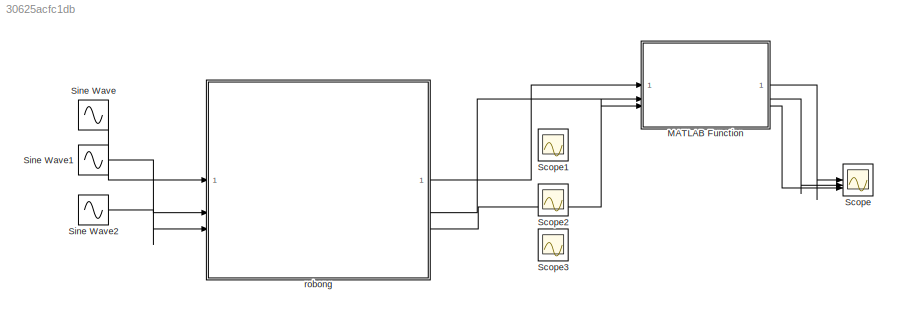
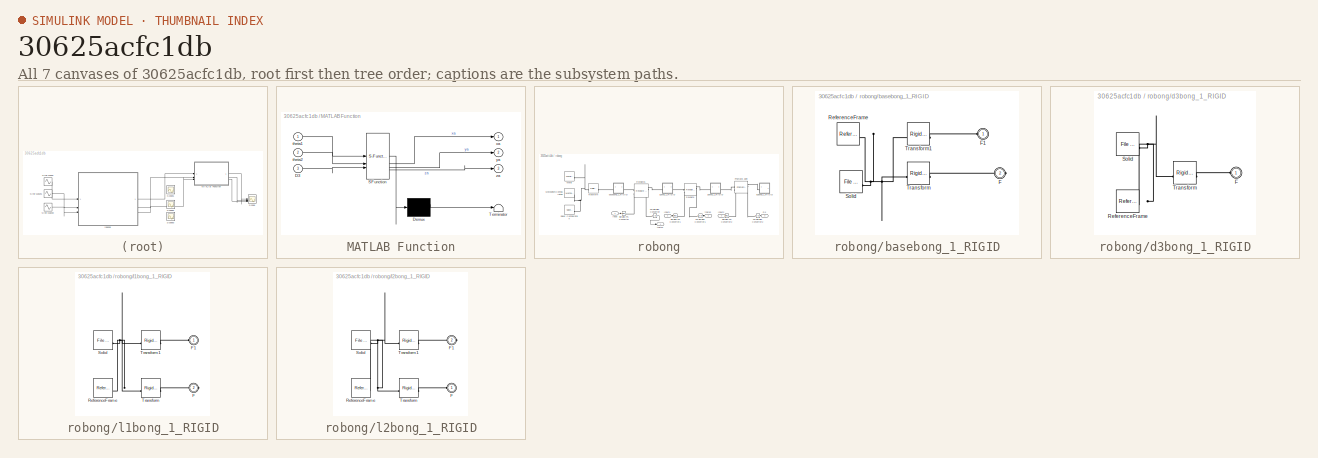
[diagram: thumbnail index - all 7 canvases of the model, root first then tree order]
MODEL slx_30625acfc1db
KIND model
CONFIG AbsTol = auto
CONFIG EnableMultiTasking = off
CONFIG FixedStep = auto
CONFIG MaxStep = auto
CONFIG MinStep = auto
CONFIG RelTol = 1e-3
CONFIG SampleTimeConstraint = Unconstrained
CONFIG SolverName = VariableStepAuto
CONFIG StartTime = 0.0
CONFIG StopTime = 10.0
WORKSPACE source: external: MATLAB File  (data not in archive)
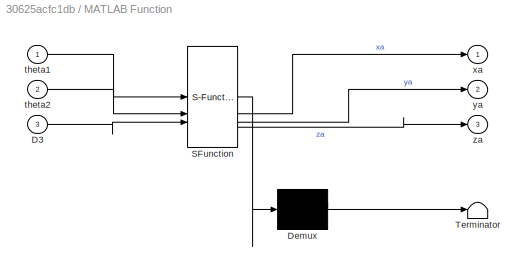
BLOCK [SubSystem] MATLAB Function
  ErrorFcn = Stateflow.Translate.translate
  PermitHierarchicalResolution = ExplicitOnly
  SFBlockType = MATLAB Function
  TreatAsAtomicUnit = on
BLOCK [Demux] MATLAB Function/ Demux 
  Outputs = 1
BLOCK [S-Function] MATLAB Function/ SFunction 
  EnableBusSupport = on
  FunctionName = sf_sfun
  PortCounts = [3 4]
  SFcnIsStateOwnerBlock = off
  SFunctionDeploymentMode = off
  Tag = Stateflow S-Function 2
BLOCK [Terminator] MATLAB Function/ Terminator 
BLOCK [Inport] MATLAB Function/D3
  Port = 3
BLOCK [Inport] MATLAB Function/theta1
BLOCK [Inport] MATLAB Function/theta2
  Port = 2
BLOCK [Outport] MATLAB Function/xa
BLOCK [Outport] MATLAB Function/ya
  Port = 2
BLOCK [Outport] MATLAB Function/za
  Port = 3
BLOCK [Scope] Scope
  Floating = off
  NumInputPorts = 3
  ScopeSpecificationString = Simulink.scopes.TimeScopeBlockCfg('CurrentConfiguration', extmgr.ConfigurationSet(extmgr.Configuration('Core','General UI',true),extmgr.Configuration('Core','Source UI',true),extmgr.Configuration('Sources','WiredSimulink',true,'DataLoggingVariableName','ScopeData1'),extmgr.Configuration('Visuals','Time Domain',true,'SerializedDisplays',{struct('MinYLimReal','0.54726','MaxYLimReal','0.6956','YLabel...<+3726ch>
BLOCK [Scope] Scope1
  Floating = off
  NumInputPorts = 3
  ScopeSpecificationString = Simulink.scopes.TimeScopeBlockCfg('CurrentConfiguration', extmgr.ConfigurationSet(extmgr.Configuration('Core','General UI',true),extmgr.Configuration('Core','Source UI',true),extmgr.Configuration('Sources','WiredSimulink',true,'DataLoggingVariableName','ScopeData1'),extmgr.Configuration('Visuals','Time Domain',true,'SerializedDisplays',{struct('MinYLimReal','-1.00000','MaxYLimReal','1.00000','YLab...<+3790ch>
BLOCK [Scope] Scope2
  Floating = off
  NumInputPorts = 3
  ScopeSpecificationString = Simulink.scopes.TimeScopeBlockCfg('CurrentConfiguration', extmgr.ConfigurationSet(extmgr.Configuration('Core','General UI',true),extmgr.Configuration('Core','Source UI',true),extmgr.Configuration('Sources','WiredSimulink',true,'DataLoggingVariableName','ScopeData2'),extmgr.Configuration('Visuals','Time Domain',true,'SerializedDisplays',{struct('MinYLimReal','-1.00000','MaxYLimReal','1.00000','YLab...<+3791ch>
BLOCK [Scope] Scope3
  Floating = off
  NumInputPorts = 3
  ScopeSpecificationString = Simulink.scopes.TimeScopeBlockCfg('CurrentConfiguration', extmgr.ConfigurationSet(extmgr.Configuration('Core','General UI',true),extmgr.Configuration('Core','Source UI',true),extmgr.Configuration('Sources','WiredSimulink',true,'DataLoggingVariableName','ScopeData3'),extmgr.Configuration('Visuals','Time Domain',true,'SerializedDisplays',{struct('MinYLimReal','-1.00000','MaxYLimReal','1.00000','YLab...<+3791ch>
BLOCK [Sin] Sine Wave
  Amplitude = -0.25
  Bias = 0.25
  SampleTime = 0
BLOCK [Sin] Sine Wave1
  SampleTime = 0
BLOCK [Sin] Sine Wave2
  SampleTime = 0
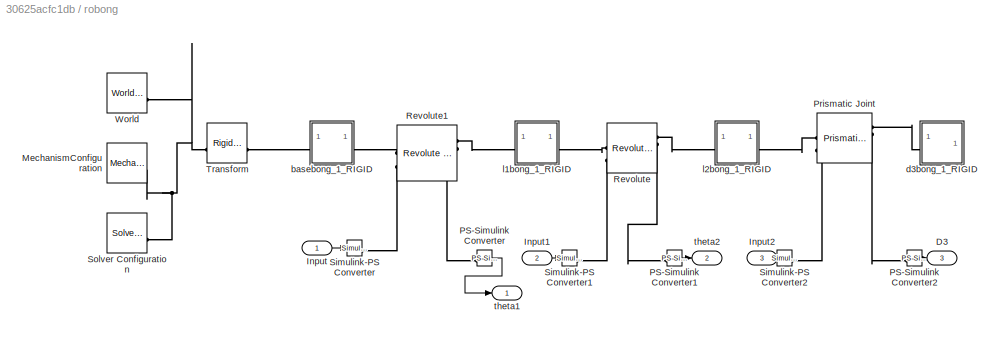
BLOCK [SubSystem] robong
BLOCK [Outport] robong/D3
  Port = 3
BLOCK [Inport] robong/Input
BLOCK [Inport] robong/Input1
  Port = 2
BLOCK [Inport] robong/Input2
  Port = 3
BLOCK [Reference] robong/MechanismConfiguration  REF=sm_lib/Utilities/Mechanism
Configuration
  SourceBlock = sm_lib/Utilities/Mechanism\nConfiguration
  SourceType = Mechanism\nConfiguration
BLOCK [Reference] robong/PS-Simulink Converter  REF=nesl_utility/PS-Simulink
Converter
  SourceBlock = nesl_utility/PS-Simulink\nConverter
  SourceType = PS-Simulink\nConverter
BLOCK [Reference] robong/PS-Simulink Converter1  REF=nesl_utility/PS-Simulink
Converter
  SourceBlock = nesl_utility/PS-Simulink\nConverter
  SourceType = PS-Simulink\nConverter
BLOCK [Reference] robong/PS-Simulink Converter2  REF=nesl_utility/PS-Simulink
Converter
  SourceBlock = nesl_utility/PS-Simulink\nConverter
  SourceType = PS-Simulink\nConverter
BLOCK [Reference] robong/Prismatic Joint  REF=sm_lib/Joints/Prismatic
Joint
  SourceBlock = sm_lib/Joints/Prismatic\nJoint
  SourceType = Prismatic\nJoint
BLOCK [Reference] robong/Revolute  REF=sm_lib/Joints/Revolute Joint
  SourceBlock = sm_lib/Joints/Revolute Joint
  SourceType = Revolute Joint
BLOCK [Reference] robong/Revolute1  REF=sm_lib/Joints/Revolute Joint
  SourceBlock = sm_lib/Joints/Revolute Joint
  SourceType = Revolute Joint
BLOCK [Reference] robong/Simulink-PS Converter  REF=nesl_utility/Simulink-PS
Converter
  SourceBlock = nesl_utility/Simulink-PS\nConverter
  SourceType = Simulink-PS\nConverter
BLOCK [Reference] robong/Simulink-PS Converter1  REF=nesl_utility/Simulink-PS
Converter
  SourceBlock = nesl_utility/Simulink-PS\nConverter
  SourceType = Simulink-PS\nConverter
BLOCK [Reference] robong/Simulink-PS Converter2  REF=nesl_utility/Simulink-PS
Converter
  SourceBlock = nesl_utility/Simulink-PS\nConverter
  SourceType = Simulink-PS\nConverter
BLOCK [Reference] robong/Solver Configuration  REF=nesl_utility/Solver
Configuration
  SourceBlock = nesl_utility/Solver\nConfiguration
  SourceType = Solver\nConfiguration
BLOCK [Reference] robong/Transform  REF=sm_lib/Frames and
Transforms/Rigid
Transform
  SourceBlock = sm_lib/Frames and\nTransforms/Rigid\nTransform
  SourceType = Rigid\nTransform
BLOCK [Reference] robong/World  REF=sm_lib/Frames and
Transforms/World Frame
  SourceBlock = sm_lib/Frames and\nTransforms/World Frame
  SourceType = World Frame
BLOCK [SubSystem] robong/basebong_1_RIGID
BLOCK [PMIOPort] robong/basebong_1_RIGID/F
  Port = 2
  Side = Right
BLOCK [PMIOPort] robong/basebong_1_RIGID/F1
  Side = Left
BLOCK [Reference] robong/basebong_1_RIGID/ReferenceFrame  REF=sm_lib/Frames and
Transforms/Reference
Frame
  SourceBlock = sm_lib/Frames and\nTransforms/Reference\nFrame
  SourceType = Reference\nFrame
BLOCK [Reference] robong/basebong_1_RIGID/Solid  REF=sm_lib/Body Elements/File Solid
  SourceBlock = sm_lib/Body Elements/File Solid
  SourceType = File Solid
BLOCK [Reference] robong/basebong_1_RIGID/Transform  REF=sm_lib/Frames and
Transforms/Rigid
Transform
  SourceBlock = sm_lib/Frames and\nTransforms/Rigid\nTransform
  SourceType = Rigid\nTransform
BLOCK [Reference] robong/basebong_1_RIGID/Transform1  REF=sm_lib/Frames and
Transforms/Rigid
Transform
  SourceBlock = sm_lib/Frames and\nTransforms/Rigid\nTransform
  SourceType = Rigid\nTransform
BLOCK [SubSystem] robong/d3bong_1_RIGID
BLOCK [PMIOPort] robong/d3bong_1_RIGID/F
  Side = Left
BLOCK [Reference] robong/d3bong_1_RIGID/ReferenceFrame  REF=sm_lib/Frames and
Transforms/Reference
Frame
  SourceBlock = sm_lib/Frames and\nTransforms/Reference\nFrame
  SourceType = Reference\nFrame
BLOCK [Reference] robong/d3bong_1_RIGID/Solid  REF=sm_lib/Body Elements/File Solid
  SourceBlock = sm_lib/Body Elements/File Solid
  SourceType = File Solid
BLOCK [Reference] robong/d3bong_1_RIGID/Transform  REF=sm_lib/Frames and
Transforms/Rigid
Transform
  SourceBlock = sm_lib/Frames and\nTransforms/Rigid\nTransform
  SourceType = Rigid\nTransform
BLOCK [SubSystem] robong/l1bong_1_RIGID
BLOCK [PMIOPort] robong/l1bong_1_RIGID/F
  Port = 2
  Side = Right
BLOCK [PMIOPort] robong/l1bong_1_RIGID/F1
  Side = Left
BLOCK [Reference] robong/l1bong_1_RIGID/ReferenceFrame  REF=sm_lib/Frames and
Transforms/Reference
Frame
  SourceBlock = sm_lib/Frames and\nTransforms/Reference\nFrame
  SourceType = Reference\nFrame
BLOCK [Reference] robong/l1bong_1_RIGID/Solid  REF=sm_lib/Body Elements/File Solid
  SourceBlock = sm_lib/Body Elements/File Solid
  SourceType = File Solid
BLOCK [Reference] robong/l1bong_1_RIGID/Transform  REF=sm_lib/Frames and
Transforms/Rigid
Transform
  SourceBlock = sm_lib/Frames and\nTransforms/Rigid\nTransform
  SourceType = Rigid\nTransform
BLOCK [Reference] robong/l1bong_1_RIGID/Transform1  REF=sm_lib/Frames and
Transforms/Rigid
Transform
  SourceBlock = sm_lib/Frames and\nTransforms/Rigid\nTransform
  SourceType = Rigid\nTransform
BLOCK [SubSystem] robong/l2bong_1_RIGID
BLOCK [PMIOPort] robong/l2bong_1_RIGID/F
  Side = Left
BLOCK [PMIOPort] robong/l2bong_1_RIGID/F1
  Port = 2
  Side = Right
BLOCK [Reference] robong/l2bong_1_RIGID/ReferenceFrame  REF=sm_lib/Frames and
Transforms/Reference
Frame
  SourceBlock = sm_lib/Frames and\nTransforms/Reference\nFrame
  SourceType = Reference\nFrame
BLOCK [Reference] robong/l2bong_1_RIGID/Solid  REF=sm_lib/Body Elements/File Solid
  SourceBlock = sm_lib/Body Elements/File Solid
  SourceType = File Solid
BLOCK [Reference] robong/l2bong_1_RIGID/Transform  REF=sm_lib/Frames and
Transforms/Rigid
Transform
  SourceBlock = sm_lib/Frames and\nTransforms/Rigid\nTransform
  SourceType = Rigid\nTransform
BLOCK [Reference] robong/l2bong_1_RIGID/Transform1  REF=sm_lib/Frames and
Transforms/Rigid
Transform
  SourceBlock = sm_lib/Frames and\nTransforms/Rigid\nTransform
  SourceType = Rigid\nTransform
BLOCK [Outport] robong/theta1
BLOCK [Outport] robong/theta2
  Port = 2
LINE MATLAB Function:1 -> Scope:1
LINE MATLAB Function:2 -> Scope:2
LINE MATLAB Function:3 -> Scope:3
LINE Sine Wave1:1 -> robong:2
LINE Sine Wave2:1 -> robong:3
LINE Sine Wave:1 -> robong:1
LINE robong/Input1:1 -> robong/Simulink-PS Converter1:1
LINE robong/Input:1 -> robong/Simulink-PS Converter:1
LINE robong/PS-Simulink Converter1:1 -> robong/theta2:1
LINE robong/PS-Simulink Converter2:1 -> robong/D3:1
LINE robong/PS-Simulink Converter:1 -> robong/theta1:1
LINE robong:1 -> MATLAB Function:1
LINE robong:2 -> MATLAB Function:2
LINE robong:3 -> MATLAB Function:3
PNET net1: robong/MechanismConfiguration:RConn1 -- robong/Solver Configuration:RConn1 -- robong/Transform:LConn1 -- robong/World:RConn1
PLINE robong/PS-Simulink Converter1:LConn1 -- robong/Revolute:RConn2
PLINE robong/PS-Simulink Converter2:LConn1 -- robong/Prismatic Joint:RConn2
PLINE robong/PS-Simulink Converter:LConn1 -- robong/Revolute1:RConn2
PLINE robong/Prismatic Joint:LConn1 -- robong/l2bong_1_RIGID:RConn1
PLINE robong/Prismatic Joint:LConn2 -- robong/Simulink-PS Converter2:RConn1
PLINE robong/Prismatic Joint:RConn1 -- robong/d3bong_1_RIGID:LConn1
PLINE robong/Revolute1:LConn1 -- robong/basebong_1_RIGID:RConn1
PLINE robong/Revolute1:LConn2 -- robong/Simulink-PS Converter:RConn1
PLINE robong/Revolute1:RConn1 -- robong/l1bong_1_RIGID:LConn1
PLINE robong/Revolute:LConn1 -- robong/l1bong_1_RIGID:RConn1
PLINE robong/Revolute:LConn2 -- robong/Simulink-PS Converter1:RConn1
PLINE robong/Revolute:RConn1 -- robong/l2bong_1_RIGID:LConn1
PLINE robong/Transform:RConn1 -- robong/basebong_1_RIGID:LConn1
PLINE robong/basebong_1_RIGID/F1:RConn1 -- robong/basebong_1_RIGID/Transform1:RConn1
PLINE robong/basebong_1_RIGID/F:RConn1 -- robong/basebong_1_RIGID/Transform:RConn1
PNET net2: robong/basebong_1_RIGID/ReferenceFrame:RConn1 -- robong/basebong_1_RIGID/Solid:RConn1 -- robong/basebong_1_RIGID/Transform1:LConn1 -- robong/basebong_1_RIGID/Transform:LConn1
PLINE robong/d3bong_1_RIGID/F:RConn1 -- robong/d3bong_1_RIGID/Transform:RConn1
PNET net3: robong/d3bong_1_RIGID/ReferenceFrame:RConn1 -- robong/d3bong_1_RIGID/Solid:RConn1 -- robong/d3bong_1_RIGID/Transform:LConn1
PLINE robong/l1bong_1_RIGID/F1:RConn1 -- robong/l1bong_1_RIGID/Transform1:RConn1
PLINE robong/l1bong_1_RIGID/F:RConn1 -- robong/l1bong_1_RIGID/Transform:RConn1
PNET net4: robong/l1bong_1_RIGID/ReferenceFrame:RConn1 -- robong/l1bong_1_RIGID/Solid:RConn1 -- robong/l1bong_1_RIGID/Transform1:LConn1 -- robong/l1bong_1_RIGID/Transform:LConn1
PLINE robong/l2bong_1_RIGID/F1:RConn1 -- robong/l2bong_1_RIGID/Transform1:RConn1
PLINE robong/l2bong_1_RIGID/F:RConn1 -- robong/l2bong_1_RIGID/Transform:RConn1
PNET net5: robong/l2bong_1_RIGID/ReferenceFrame:RConn1 -- robong/l2bong_1_RIGID/Solid:RConn1 -- robong/l2bong_1_RIGID/Transform1:LConn1 -- robong/l2bong_1_RIGID/Transform:LConn1
note: PNET lines group multi-terminal physical nets as a canonical sorted terminal list (undirected conserving connections); 2-terminal nets keep the pairwise PLINE form
CHART MATLAB Function states=1 transitions=1
  STATE_LABEL 'eML_blk_kernel()'
  STATE_LABEL 'SCRIPT:\nfunction [xa, ya, za] = Forward_Kinematics(theta1, theta2, D3)\nl1=0.4;\nl2=0.3;\nxa=l1*cos(theta1)+l2*cos(theta1+theta2);\nya=l1*sin(theta1)+l2*sin(theta1+theta2);\nza=D3;'
CHART  states=0 transitions=0
